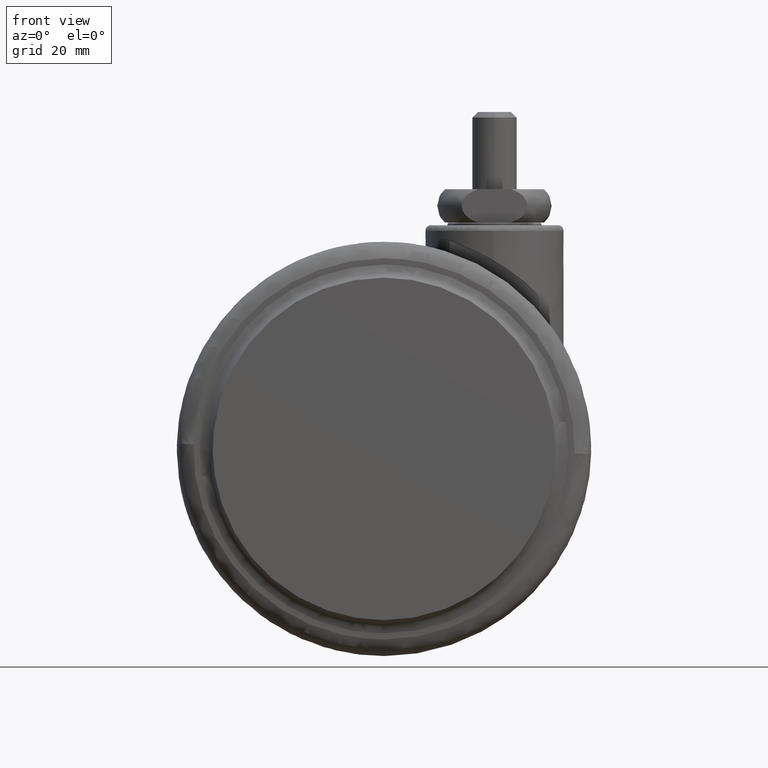
[diagram: clean part render]
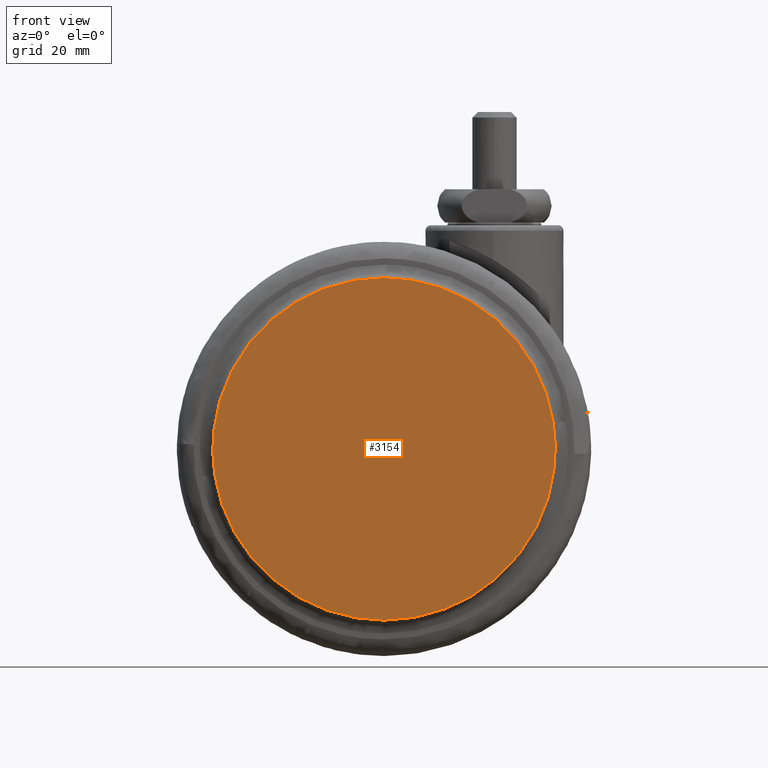
[diagram: same view with one face highlighted and labeled with its STEP entity id]
A machine part, front view. The second image highlights one B-rep face of the part: STEP entity #3154.
In plain terms, the highlighted face is a freeform B-spline surface patch.
Its self-contained STEP definition (entity closure, byte-faithful):
#3014=CARTESIAN_POINT('',(10.648204086947260,-23.499999999140972,-35.843006737229253));
#3015=VERTEX_POINT('',#3014);
#3029=CARTESIAN_POINT('',(-20.0,-23.500000000000021,-71.500000000000185));
#3030=VERTEX_POINT('',#3029);
#3031=CARTESIAN_POINT('',(-20.0,-23.500000000000021,-71.500000000000185));
#3032=CARTESIAN_POINT('',(11.000000000031953,-23.499999999630838,-71.499999999995254));
#3033=CARTESIAN_POINT('',(11.000000000069130,-23.499999999201311,-40.499999999989498));
#3034=CARTESIAN_POINT('',(11.000000000071932,-23.499999999168864,-38.158215786095255));
#3035=CARTESIAN_POINT('',(10.648204086947262,-23.499999999140975,-35.843006737229246));
#3043=(BOUNDED_CURVE()B_SPLINE_CURVE(2,(#3031,#3032,#3033,#3034,#3035),.UNSPECIFIED.,.F.,.U.)B_SPLINE_CURVE_WITH_KNOTS((3,2,3),(0.0,0.250000000000000,0.275897584623553),.UNSPECIFIED.)CURVE()GEOMETRIC_REPRESENTATION_ITEM()RATIONAL_B_SPLINE_CURVE((1.0,0.707106781186548,1.0,0.969659092320456,0.945604234434402))REPRESENTATION_ITEM(''));
#3044=EDGE_CURVE('',#3030,#3015,#3043,.T.);
#3046=CARTESIAN_POINT('',(-50.648204086947260,-23.499999999140972,-45.156993262770747));
#3047=VERTEX_POINT('',#3046);
#3048=CARTESIAN_POINT('',(-50.648204086947260,-23.499999999140968,-45.156993262770762));
#3049=CARTESIAN_POINT('',(-46.645385372037936,-23.499999999570488,-71.500000000005727));
#3050=CARTESIAN_POINT('',(-20.0,-23.500000000000021,-71.500000000000185));
#3058=(BOUNDED_CURVE()B_SPLINE_CURVE(2,(#3048,#3049,#3050),.UNSPECIFIED.,.F.,.U.)B_SPLINE_CURVE_WITH_KNOTS((3,3),(0.775897584623553,1.0),.UNSPECIFIED.)CURVE()GEOMETRIC_REPRESENTATION_ITEM()RATIONAL_B_SPLINE_CURVE((0.945604234434402,0.737447688866092,1.0))REPRESENTATION_ITEM(''));
#3059=EDGE_CURVE('',#3047,#3030,#3058,.T.);
#3108=CARTESIAN_POINT('',(-20.0,-23.500000000000000,-9.500000000000002));
#3109=VERTEX_POINT('',#3108);
#3110=CARTESIAN_POINT('',(-20.0,-23.500000000000000,-9.500000000000002));
#3111=CARTESIAN_POINT('',(-51.000000000031974,-23.499999999630823,-9.500000000004851));
#3112=CARTESIAN_POINT('',(-51.000000000069129,-23.499999999201300,-40.500000000010488));
#3113=CARTESIAN_POINT('',(-51.000000000071942,-23.499999999168857,-42.841784213904745));
#3114=CARTESIAN_POINT('',(-50.648204086947260,-23.499999999140968,-45.156993262770762));
#3122=(BOUNDED_CURVE()B_SPLINE_CURVE(2,(#3110,#3111,#3112,#3113,#3114),.UNSPECIFIED.,.F.,.U.)B_SPLINE_CURVE_WITH_KNOTS((3,2,3),(0.500000000000000,0.750000000000000,0.775897584623553),.UNSPECIFIED.)CURVE()GEOMETRIC_REPRESENTATION_ITEM()RATIONAL_B_SPLINE_CURVE((1.0,0.707106781186548,1.0,0.969659092320456,0.945604234434402))REPRESENTATION_ITEM(''));
#3123=EDGE_CURVE('',#3109,#3047,#3122,.T.);
#3125=CARTESIAN_POINT('',(10.648204086947262,-23.499999999140975,-35.843006737229246));
#3126=CARTESIAN_POINT('',(6.645385372037931,-23.499999999570491,-9.499999999994349));
#3127=CARTESIAN_POINT('',(-20.0,-23.500000000000000,-9.500000000000002));
#3135=(BOUNDED_CURVE()B_SPLINE_CURVE(2,(#3125,#3126,#3127),.UNSPECIFIED.,.F.,.U.)B_SPLINE_CURVE_WITH_KNOTS((3,3),(0.275897584623553,0.500000000000000),.UNSPECIFIED.)CURVE()GEOMETRIC_REPRESENTATION_ITEM()RATIONAL_B_SPLINE_CURVE((0.945604234434402,0.737447688866092,1.0))REPRESENTATION_ITEM(''));
#3136=EDGE_CURVE('',#3015,#3109,#3135,.T.);
#3143=CARTESIAN_POINT('',(-54.089121003145273,-23.500000000000000,-6.403100120168022));
#3144=CARTESIAN_POINT('',(-54.089121003145273,-23.500000000000000,-74.596901542801746));
#3145=CARTESIAN_POINT('',(14.089122665735459,-23.500000000000000,-6.403100120168022));
#3146=CARTESIAN_POINT('',(14.089122665735459,-23.500000000000000,-74.596901542801746));
#3147=B_SPLINE_SURFACE_WITH_KNOTS('',1,1,((#3143,#3145),(#3144,#3146)),.UNSPECIFIED.,.F.,.F.,.U.,(2,2),(2,2),(0.0,68.193801422633726),(0.0,68.178243668880725),.UNSPECIFIED.);
#3148=ORIENTED_EDGE('',*,*,#3044,.T.);
#3149=ORIENTED_EDGE('',*,*,#3136,.T.);
#3150=ORIENTED_EDGE('',*,*,#3123,.T.);
#3151=ORIENTED_EDGE('',*,*,#3059,.T.);
#3152=EDGE_LOOP('',(#3148,#3149,#3150,#3151));
#3153=FACE_OUTER_BOUND('',#3152,.T.);
#3154=ADVANCED_FACE('',(#3153),#3147,.T.);